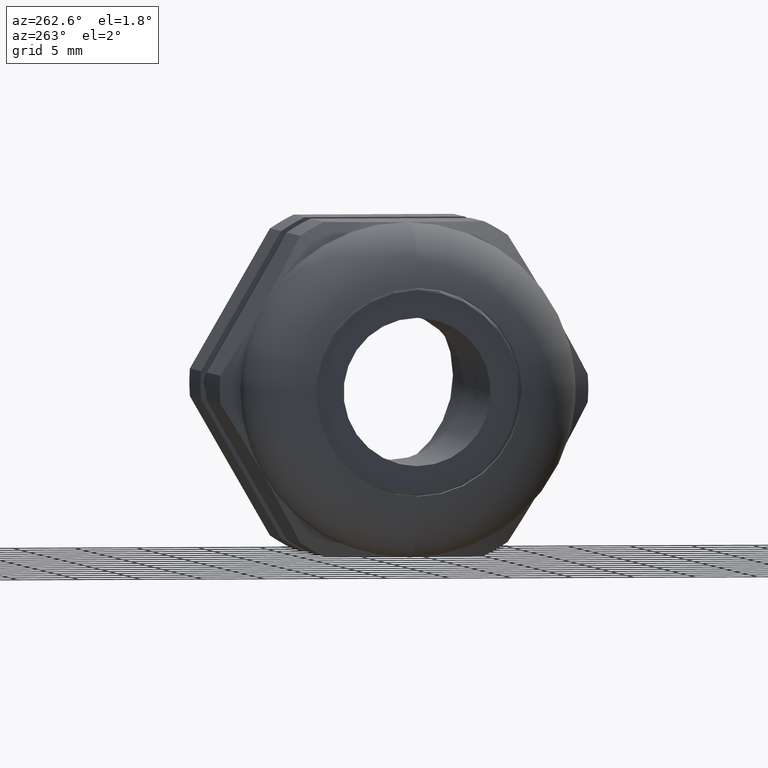
[diagram: clean part render]
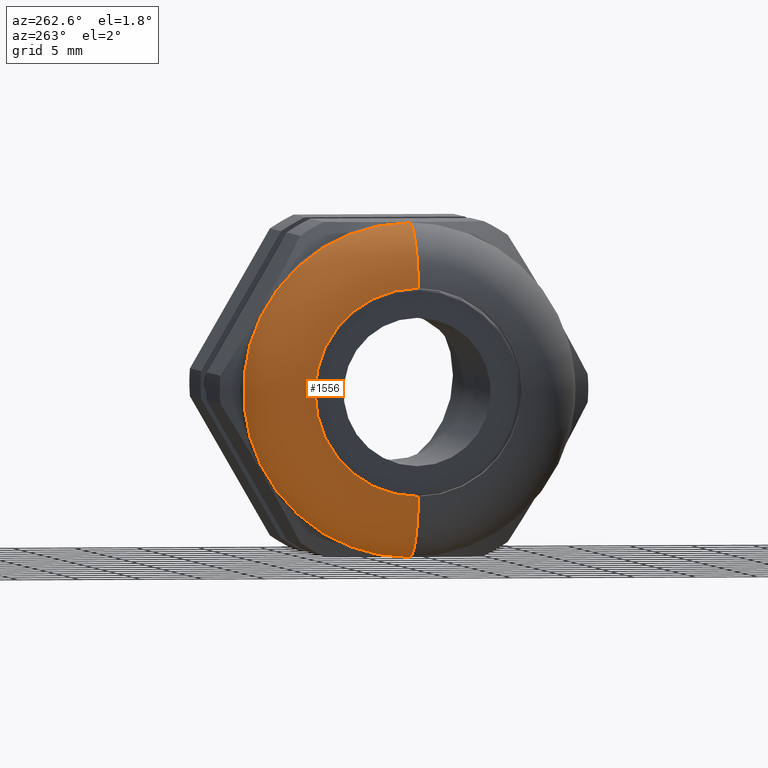
[diagram: same view with one face highlighted and labeled with its STEP entity id]
A machine part, auxiliary view. The second image highlights one B-rep face of the part: STEP entity #1556.
In plain terms, the highlighted toroidal blend (fillet) surface has major radius 7.874 mm and minor (blend) radius 5.588 mm.
Its self-contained STEP definition (entity closure, byte-faithful):
#1556 = ADVANCED_FACE ( 'NONE', ( #3313 ), #3299, .T. ) ;
#1578 = VERTEX_POINT ( 'NONE', #3373 ) ;
#1585 = EDGE_LOOP ( 'NONE', ( #1605, #2725, #2728, #1705 ) ) ;
#1590 = EDGE_CURVE ( 'NONE', #1578, #2723, #3359, .T. ) ;
#1605 = ORIENTED_EDGE ( 'NONE', *, *, #1590, .F. ) ;
#1704 = EDGE_CURVE ( 'NONE', #2723, #2722, #3635, .T. ) ;
#1705 = ORIENTED_EDGE ( 'NONE', *, *, #1704, .F. ) ;
#2722 = VERTEX_POINT ( 'NONE', #3660 ) ;
#2723 = VERTEX_POINT ( 'NONE', #3659 ) ;
#2724 = EDGE_CURVE ( 'NONE', #2727, #2722, #3658, .T. ) ;
#2725 = ORIENTED_EDGE ( 'NONE', *, *, #2726, .T. ) ;
#2726 = EDGE_CURVE ( 'NONE', #1578, #2727, #3653, .T. ) ;
#2727 = VERTEX_POINT ( 'NONE', #3648 ) ;
#2728 = ORIENTED_EDGE ( 'NONE', *, *, #2724, .T. ) ;
#3296 = DIRECTION ( 'NONE',  ( 0.0000000000000000000, 0.0000000000000000000, 1.000000000000000000 ) ) ;
#3297 = DIRECTION ( 'NONE',  ( -1.000000000000000000, 0.0000000000000000000, 0.0000000000000000000 ) ) ;
#3298 = AXIS2_PLACEMENT_3D ( 'NONE', #3310, #3297, #3296 ) ;
#3299 = TOROIDAL_SURFACE ( 'NONE', #3298, 0.3100000000000001100, 0.2200000000000000000 ) ;
#3310 = CARTESIAN_POINT ( 'NONE',  ( -1.190910976997933600, 0.0000000000000000000, 0.0000000000000000000 ) ) ;
#3313 = FACE_OUTER_BOUND ( 'NONE', #1585, .T. ) ;
#3356 = DIRECTION ( 'NONE',  ( 0.0000000000000000000, 0.0000000000000000000, 1.000000000000000000 ) ) ;
#3357 = DIRECTION ( 'NONE',  ( 1.000000000000000000, 0.0000000000000000000, 0.0000000000000000000 ) ) ;
#3358 = AXIS2_PLACEMENT_3D ( 'NONE', #3365, #3357, #3356 ) ;
#3359 = CIRCLE ( 'NONE', #3358, 0.5300000000000001400 ) ;
#3365 = CARTESIAN_POINT ( 'NONE',  ( -1.190910976997933600, 0.0000000000000000000, 0.0000000000000000000 ) ) ;
#3373 = CARTESIAN_POINT ( 'NONE',  ( -1.190910976997933600, 0.0000000000000000000, -0.5300000000000001400 ) ) ;
#3631 = DIRECTION ( 'NONE',  ( 0.0000000000000000000, 0.0000000000000000000, -1.000000000000000000 ) ) ;
#3632 = DIRECTION ( 'NONE',  ( 0.0000000000000000000, -1.000000000000000000, 0.0000000000000000000 ) ) ;
#3633 = CARTESIAN_POINT ( 'NONE',  ( -1.190910976997933600, 0.0000000000000000000, 0.3100000000000001100 ) ) ;
#3634 = AXIS2_PLACEMENT_3D ( 'NONE', #3633, #3632, #3631 ) ;
#3635 = CIRCLE ( 'NONE', #3634, 0.2200000000000000000 ) ;
#3648 = CARTESIAN_POINT ( 'NONE',  ( -1.409999999999999900, 0.0000000000000000000, -0.3300000000000000200 ) ) ;
#3649 = DIRECTION ( 'NONE',  ( 0.0000000000000000000, -1.224646799147353200E-016, 1.000000000000000000 ) ) ;
#3650 = DIRECTION ( 'NONE',  ( 0.0000000000000000000, 1.000000000000000000, 1.224646799147353200E-016 ) ) ;
#3651 = CARTESIAN_POINT ( 'NONE',  ( -1.190910976997933600, 3.796405077356796400E-017, -0.3100000000000001100 ) ) ;
#3652 = AXIS2_PLACEMENT_3D ( 'NONE', #3651, #3650, #3649 ) ;
#3653 = CIRCLE ( 'NONE', #3652, 0.2200000000000000000 ) ;
#3654 = DIRECTION ( 'NONE',  ( 0.0000000000000000000, 0.0000000000000000000, -1.000000000000000000 ) ) ;
#3655 = DIRECTION ( 'NONE',  ( 1.000000000000000000, 0.0000000000000000000, 0.0000000000000000000 ) ) ;
#3656 = CARTESIAN_POINT ( 'NONE',  ( -1.409999999999999900, 0.0000000000000000000, 0.0000000000000000000 ) ) ;
#3657 = AXIS2_PLACEMENT_3D ( 'NONE', #3656, #3655, #3654 ) ;
#3658 = CIRCLE ( 'NONE', #3657, 0.3300000000000000200 ) ;
#3659 = CARTESIAN_POINT ( 'NONE',  ( -1.190910976997933600, 6.490628035480972400E-017, 0.5300000000000001400 ) ) ;
#3660 = CARTESIAN_POINT ( 'NONE',  ( -1.409999999999999900, 4.041334437186265900E-017, 0.3300000000000000200 ) ) ;